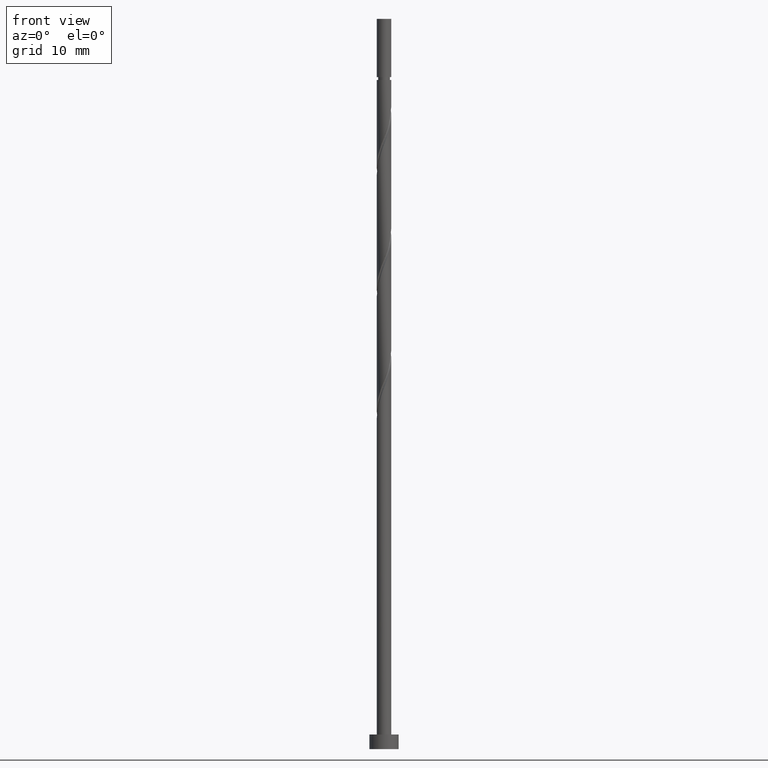
[diagram: clean part render]
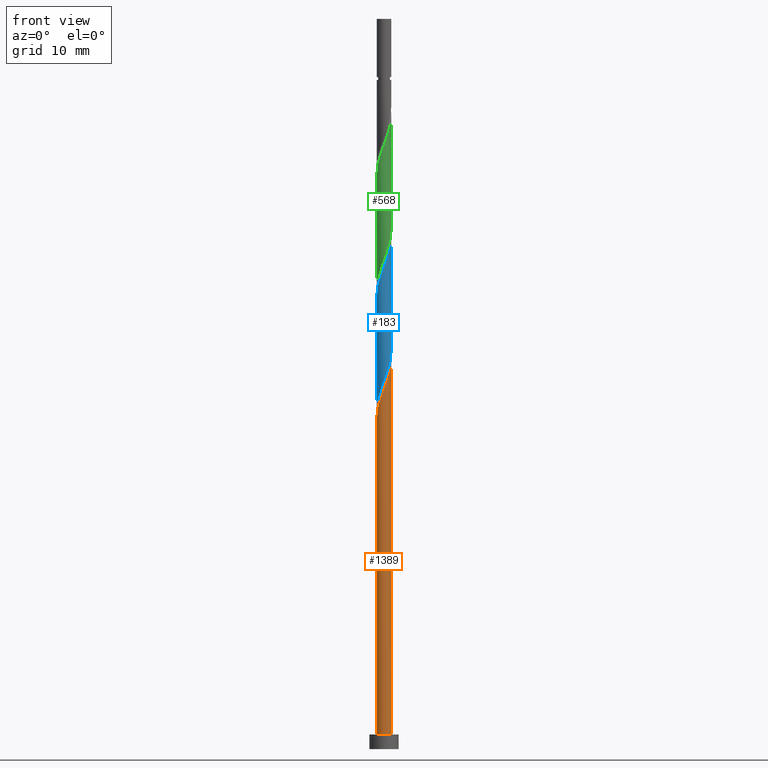
[diagram: same view with three faces highlighted in distinct colors, each labeled with its STEP entity id]
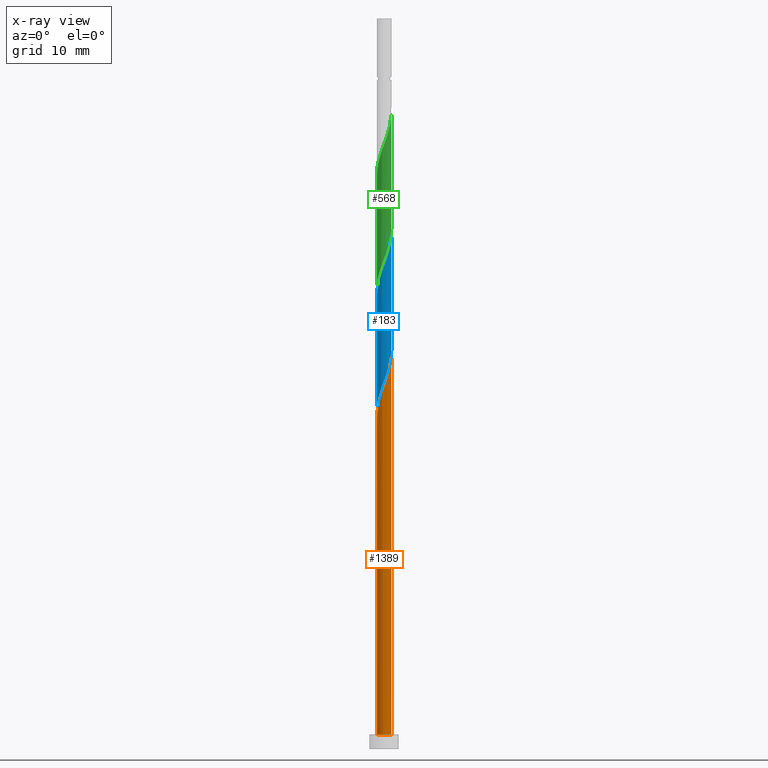
[diagram: x-ray of the same camera — body ghosted, the three highlighted faces saturated]
A machine part, front view with three faces highlighted in distinct colors.
The next image is the same camera in x-ray (body ghosted, the three faces saturated) — at least one of them is partly hidden behind the body in this view.
Their STEP definitions:

[orange] entity #1389 — the highlighted cylindrical surface (edge-blend (fillet) strip) has radius 1 mm, axis along (-0, -0, -1).
#29 = CARTESIAN_POINT ( 'NONE',  ( -0.9951180796480316726, -0.2020673444260115692, 45.79255415134097973 ) ) ;
#45 = LINE ( 'NONE', #1069, #339 ) ;
#53 = AXIS2_PLACEMENT_3D ( 'NONE', #1346, #643, #1102 ) ;
#76 = DIRECTION ( 'NONE',  ( 0.000000000000000000, 0.000000000000000000, 1.000000000000000000 ) ) ;
#79 = CARTESIAN_POINT ( 'NONE',  ( 0.6725544933722016339, -0.7607638645273760991, 51.34810970689651555 ) ) ;
#84 = CARTESIAN_POINT ( 'NONE',  ( 0.8921910604809056844, -0.4848570054394629736, 52.27403563282246779 ) ) ;
#141 = CARTESIAN_POINT ( 'NONE',  ( -1.000000000000001554, 5.471396497799840470E-16, 45.26169926301888324 ) ) ;
#180 = CARTESIAN_POINT ( 'NONE',  ( 0.000000000000000000, 0.000000000000000000, 2.000000000000000000 ) ) ;
#291 = CARTESIAN_POINT ( 'NONE',  ( -0.1481832699744008441, -0.9889599175394809816, 49.03329489208170600 ) ) ;
#299 = CARTESIAN_POINT ( 'NONE',  ( 0.02619704632702806249, -1.015088626125574489, 49.49625785504468212 ) ) ;
#305 = CARTESIAN_POINT ( 'NONE',  ( 1.000000000000001776, -0.1630543718204568171, 53.16511308398659708 ) ) ;
#322 = ORIENTED_EDGE ( 'NONE', *, *, #1287, .F. ) ;
#339 = VECTOR ( 'NONE', #1438, 1000.000000000000000 ) ;
#362 = CARTESIAN_POINT ( 'NONE',  ( 1.000000000000001554, -5.620786163268778548E-16, 53.59503259635221895 ) ) ;
#367 = CARTESIAN_POINT ( 'NONE',  ( -0.8659940141538775560, -0.5302316206861118486, 46.71848007726690355 ) ) ;
#401 = VERTEX_POINT ( 'NONE', #608 ) ;
#402 = CARTESIAN_POINT ( 'NONE',  ( 0.5221762109439108679, -0.8528376192009020640, 50.88514674393356785 ) ) ;
#424 = VERTEX_POINT ( 'NONE', #555 ) ;
#471 = CARTESIAN_POINT ( 'NONE',  ( -1.000000000000001554, 5.471396497799840470E-16, 45.26169926301888324 ) ) ;
#525 = VERTEX_POINT ( 'NONE', #362 ) ;
#540 = CARTESIAN_POINT ( 'NONE',  ( 0.9482036394194132134, -0.3176631206038599275, 52.73699859578541549 ) ) ;
#545 = CARTESIAN_POINT ( 'NONE',  ( 1.000000000000001554, -5.620786163268778548E-16, 53.59503259635221895 ) ) ;
#555 = CARTESIAN_POINT ( 'NONE',  ( -1.000000000000000000, 0.000000000000000000, 2.000000000000000000 ) ) ;
#593 = EDGE_CURVE ( 'NONE', #525, #401, #1082, .T. ) ;
#594 = CARTESIAN_POINT ( 'NONE',  ( -0.9996671490029760410, -0.02579905432887748956, 45.32959118837801071 ) ) ;
#603 = CARTESIAN_POINT ( 'NONE',  ( -0.6324182898423007515, -0.7944421381061724796, 47.64440600319283448 ) ) ;
#608 = CARTESIAN_POINT ( 'NONE',  ( 1.000000000000000000, 1.224646799147353207E-16, 2.000000000000000000 ) ) ;
#614 = CARTESIAN_POINT ( 'NONE',  ( -1.000000000000001332, -0.01290167433202621221, 45.29571663695122652 ) ) ;
#643 = DIRECTION ( 'NONE',  ( -0.000000000000000000, -0.000000000000000000, -1.000000000000000000 ) ) ;
#652 = CARTESIAN_POINT ( 'NONE',  ( 0.3717979285156199909, -0.9449113738744290281, 50.42218378097059883 ) ) ;
#706 = ORIENTED_EDGE ( 'NONE', *, *, #593, .F. ) ;
#774 = VECTOR ( 'NONE', #1315, 1000.000000000000000 ) ;
#786 = ORIENTED_EDGE ( 'NONE', *, *, #1404, .T. ) ;
#828 = CARTESIAN_POINT ( 'NONE',  ( -0.7492061519980890427, -0.6623368793961417200, 47.18144304022986546 ) ) ;
#850 = EDGE_CURVE ( 'NONE', #1257, #424, #45, .T. ) ;
#888 = AXIS2_PLACEMENT_3D ( 'NONE', #180, #76, #986 ) ;
#936 = CARTESIAN_POINT ( 'NONE',  ( -0.9305560469009542812, -0.3661494825560615007, 46.25551711430392743 ) ) ;
#986 = DIRECTION ( 'NONE',  ( 1.000000000000000000, 0.000000000000000000, 0.000000000000000000 ) ) ;
#1048 = CIRCLE ( 'NONE', #888, 1.000000000000000000 ) ;
#1069 = CARTESIAN_POINT ( 'NONE',  ( -1.000000000000000000, 0.000000000000000000, 100.0000000000000000 ) ) ;
#1082 = LINE ( 'NONE', #1324, #774 ) ;
#1092 = CARTESIAN_POINT ( 'NONE',  ( -0.3225635862758299832, -0.9628312089533875850, 48.57033192911875830 ) ) ;
#1095 =( BOUNDED_CURVE ( )  B_SPLINE_CURVE ( 2, ( #141, #614, #594, #29, #936, #367, #828, #603, #1331, #1092, #291, #299, #1323, #652, #402, #79, #1227, #84, #540, #305, #545 ),
 .UNSPECIFIED., .F., .T. ) 
 B_SPLINE_CURVE_WITH_KNOTS ( ( 3, 2, 2, 2, 2, 2, 2, 2, 2, 2, 3 ),
 ( 0.05452480538552949285, 0.05555555555555558023, 0.06944444444444441977, 0.08333333333333337034, 0.09722222222222220989, 0.1111111111111111605, 0.1250000000000000000, 0.1388888888888888395, 0.1527777777777777901, 0.1666666666666666297, 0.1795248053855291182 ),
 .UNSPECIFIED. ) 
 CURVE ( )  GEOMETRIC_REPRESENTATION_ITEM ( )  RATIONAL_B_SPLINE_CURVE ( ( 0.9071930855141231431, 0.9080659294509705326, 0.9090909090909101709, 0.8952797754656445228, 0.9090909090909101709, 0.8952797754656445228, 0.9090909090909101709, 0.8952797754656445228, 0.9090909090909101709, 0.8952797754656445228, 0.9090909090909101709, 0.8952797754656445228, 0.9090909090909101709, 0.8952797754656445228, 0.9090909090909101709, 0.8952797754656445228, 0.9090909090909101709, 0.8952797754656445228, 0.9090909090909101709, 0.8963047551055846052, 0.9071930855141224770 ) ) 
 REPRESENTATION_ITEM ( '' )  );
#1102 = DIRECTION ( 'NONE',  ( -1.000000000000000000, 0.000000000000000000, 0.000000000000000000 ) ) ;
#1107 = CYLINDRICAL_SURFACE ( 'NONE', #53, 1.000000000000000000 ) ;
#1109 = ORIENTED_EDGE ( 'NONE', *, *, #850, .T. ) ;
#1219 = FACE_OUTER_BOUND ( 'NONE', #1226, .T. ) ;
#1226 = EDGE_LOOP ( 'NONE', ( #706, #322, #1109, #786 ) ) ;
#1227 = CARTESIAN_POINT ( 'NONE',  ( 0.7823727769265538257, -0.6228104349834193698, 51.81107266985949167 ) ) ;
#1257 = VERTEX_POINT ( 'NONE', #471 ) ;
#1287 = EDGE_CURVE ( 'NONE', #1257, #525, #1095, .T. ) ;
#1315 = DIRECTION ( 'NONE',  ( -0.000000000000000000, -0.000000000000000000, -1.000000000000000000 ) ) ;
#1323 = CARTESIAN_POINT ( 'NONE',  ( 0.1989974874213241984, -0.9800000000000013145, 49.95922081800762271 ) ) ;
#1324 = CARTESIAN_POINT ( 'NONE',  ( 1.000000000000000000, 1.224646799147353207E-16, 100.0000000000000000 ) ) ;
#1331 = CARTESIAN_POINT ( 'NONE',  ( -0.4774909380590655061, -0.8786366735297796993, 48.10736896615578218 ) ) ;
#1346 = CARTESIAN_POINT ( 'NONE',  ( 0.000000000000000000, 0.000000000000000000, 100.0000000000000000 ) ) ;
#1389 = ADVANCED_FACE ( 'NONE', ( #1219 ), #1107, .T. ) ;
#1404 = EDGE_CURVE ( 'NONE', #424, #401, #1048, .T. ) ;
#1438 = DIRECTION ( 'NONE',  ( -0.000000000000000000, -0.000000000000000000, -1.000000000000000000 ) ) ;

[blue] entity #183 — the highlighted cylindrical surface (edge-blend (fillet) strip) has radius 1 mm, axis along (-0, -0, -1).
#1 = CARTESIAN_POINT ( 'NONE',  ( 0.6725544933722016339, -0.7607638645273760991, 68.01477637356319406 ) ) ;
#8 = CARTESIAN_POINT ( 'NONE',  ( -0.8659940141538775560, -0.5302316206861118486, 63.38514674393356785 ) ) ;
#9 = CARTESIAN_POINT ( 'NONE',  ( 0.9482036394194132134, -0.3176631206038599275, 69.40366526245207979 ) ) ;
#15 = CARTESIAN_POINT ( 'NONE',  ( -0.9305560469009542812, -0.3661494825560615007, 62.92218378097061304 ) ) ;
#23 = DIRECTION ( 'NONE',  ( -0.000000000000000000, -0.000000000000000000, -1.000000000000000000 ) ) ;
#66 = ORIENTED_EDGE ( 'NONE', *, *, #993, .F. ) ;
#99 = CARTESIAN_POINT ( 'NONE',  ( -1.000000000000001554, 5.471396497799840470E-16, 61.92836592968554754 ) ) ;
#120 = VECTOR ( 'NONE', #576, 1000.000000000000000 ) ;
#123 = CARTESIAN_POINT ( 'NONE',  ( 1.000000000000001554, -5.620786163268778548E-16, 70.26169926301886903 ) ) ;
#183 = ADVANCED_FACE ( 'NONE', ( #826 ), #506, .T. ) ;
#184 = ORIENTED_EDGE ( 'NONE', *, *, #788, .F. ) ;
#223 = CARTESIAN_POINT ( 'NONE',  ( -0.9996671490029760410, -0.02579905432887748956, 61.99625785504467501 ) ) ;
#230 = CARTESIAN_POINT ( 'NONE',  ( 0.5221762109439108679, -0.8528376192009020640, 67.55181341060023215 ) ) ;
#267 = CARTESIAN_POINT ( 'NONE',  ( 0.000000000000000000, 0.000000000000000000, 100.0000000000000000 ) ) ;
#332 = CARTESIAN_POINT ( 'NONE',  ( -0.3717979285156206015, -0.9449113738744283619, 49.49625785504466791 ) ) ;
#340 = LINE ( 'NONE', #561, #120 ) ;
#348 = CARTESIAN_POINT ( 'NONE',  ( 0.1989974874213241984, -0.9800000000000013145, 66.62588748467429411 ) ) ;
#355 = CARTESIAN_POINT ( 'NONE',  ( -0.7492061519980890427, -0.6623368793961417200, 63.84810970689654397 ) ) ;
#370 = CARTESIAN_POINT ( 'NONE',  ( 0.7492061519980887097, -0.6623368793961423862, 52.73699859578542259 ) ) ;
#379 = CARTESIAN_POINT ( 'NONE',  ( 0.4774909380590651731, -0.8786366735297796993, 51.81107266985948456 ) ) ;
#441 = CARTESIAN_POINT ( 'NONE',  ( -1.000000000000001332, -0.01290167433202499790, 61.96238330361792634 ) ) ;
#448 = CARTESIAN_POINT ( 'NONE',  ( -0.5221762109439110899, -0.8528376192009021750, 49.03329489208172731 ) ) ;
#458 = CARTESIAN_POINT ( 'NONE',  ( 0.02619704632702806249, -1.015088626125574489, 66.16292452171134642 ) ) ;
#464 = CARTESIAN_POINT ( 'NONE',  ( -0.4774909380590655061, -0.8786366735297796993, 64.77403563282246068 ) ) ;
#482 = CARTESIAN_POINT ( 'NONE',  ( 1.000000000000001332, -0.01290167433202129774, 54.62272499906404022 ) ) ;
#506 = CYLINDRICAL_SURFACE ( 'NONE', #703, 1.000000000000000000 ) ;
#529 = VECTOR ( 'NONE', #23, 1000.000000000000000 ) ;
#561 = CARTESIAN_POINT ( 'NONE',  ( 1.000000000000000000, 1.224646799147353207E-16, 100.0000000000000000 ) ) ;
#571 =( BOUNDED_CURVE ( )  B_SPLINE_CURVE ( 2, ( #598, #482, #854, #1421, #938, #1412, #370, #831, #379, #745, #1385, #1011, #1265, #332, #448, #1156, #1251, #579, #697, #1482, #903 ),
 .UNSPECIFIED., .F., .T. ) 
 B_SPLINE_CURVE_WITH_KNOTS ( ( 3, 2, 2, 2, 2, 2, 2, 2, 2, 2, 3 ),
 ( 0.8045248053855290626, 0.8055555555555555802, 0.8194444444444444198, 0.8333333333333333703, 0.8472222222222222099, 0.8611111111111111605, 0.8750000000000000000, 0.8888888888888888395, 0.9027777777777777901, 0.9166666666666666297, 0.9295248053855289516 ),
 .UNSPECIFIED. ) 
 CURVE ( )  GEOMETRIC_REPRESENTATION_ITEM ( )  RATIONAL_B_SPLINE_CURVE ( ( 0.9071930855141221439, 0.9080659294509698665, 0.9090909090909099488, 0.8952797754656446338, 0.9090909090909099488, 0.8952797754656446338, 0.9090909090909099488, 0.8952797754656446338, 0.9090909090909099488, 0.8952797754656446338, 0.9090909090909099488, 0.8952797754656446338, 0.9090909090909099488, 0.8952797754656446338, 0.9090909090909099488, 0.8952797754656446338, 0.9090909090909099488, 0.8952797754656446338, 0.9090909090909099488, 0.8963047551055848272, 0.9071930855141220329 ) ) 
 REPRESENTATION_ITEM ( '' )  );
#576 = DIRECTION ( 'NONE',  ( -0.000000000000000000, -0.000000000000000000, -1.000000000000000000 ) ) ;
#579 = CARTESIAN_POINT ( 'NONE',  ( -0.8921910604809055734, -0.4848570054394628071, 47.64440600319283448 ) ) ;
#598 = CARTESIAN_POINT ( 'NONE',  ( 1.000000000000001332, 5.975586618757505867E-17, 54.65674237299639060 ) ) ;
#633 = VERTEX_POINT ( 'NONE', #753 ) ;
#645 = EDGE_LOOP ( 'NONE', ( #184, #66, #651, #1344 ) ) ;
#651 = ORIENTED_EDGE ( 'NONE', *, *, #1151, .T. ) ;
#674 = CARTESIAN_POINT ( 'NONE',  ( -0.3225635862758299832, -0.9628312089533875850, 65.23699859578542259 ) ) ;
#675 = CARTESIAN_POINT ( 'NONE',  ( 0.7823727769265538257, -0.6228104349834193698, 68.47773933652615597 ) ) ;
#684 = CARTESIAN_POINT ( 'NONE',  ( -1.000000000000001554, 5.471396497799840470E-16, 61.92836592968554754 ) ) ;
#697 = CARTESIAN_POINT ( 'NONE',  ( -0.9482036394194132134, -0.3176631206038592614, 47.18144304022985835 ) ) ;
#703 = AXIS2_PLACEMENT_3D ( 'NONE', #267, #1056, #942 ) ;
#728 =( BOUNDED_CURVE ( )  B_SPLINE_CURVE ( 2, ( #684, #441, #223, #1379, #15, #8, #355, #1146, #464, #674, #921, #458, #348, #915, #230, #1, #675, #1259, #9, #1012, #123 ),
 .UNSPECIFIED., .F., .T. ) 
 B_SPLINE_CURVE_WITH_KNOTS ( ( 3, 2, 2, 2, 2, 2, 2, 2, 2, 2, 3 ),
 ( 0.3045248053855293957, 0.3055555555555555802, 0.3194444444444444198, 0.3333333333333333703, 0.3472222222222222099, 0.3611111111111111605, 0.3750000000000000000, 0.3888888888888888395, 0.4027777777777777901, 0.4166666666666666297, 0.4295248053855286741 ),
 .UNSPECIFIED. ) 
 CURVE ( )  GEOMETRIC_REPRESENTATION_ITEM ( )  RATIONAL_B_SPLINE_CURVE ( ( 0.9071930855141229211, 0.9080659294509704216, 0.9090909090909101709, 0.8952797754656445228, 0.9090909090909101709, 0.8952797754656445228, 0.9090909090909101709, 0.8952797754656445228, 0.9090909090909101709, 0.8952797754656445228, 0.9090909090909101709, 0.8952797754656445228, 0.9090909090909101709, 0.8952797754656445228, 0.9090909090909101709, 0.8952797754656445228, 0.9090909090909101709, 0.8952797754656445228, 0.9090909090909101709, 0.8963047551055850493, 0.9071930855141216998 ) ) 
 REPRESENTATION_ITEM ( '' )  );
#745 = CARTESIAN_POINT ( 'NONE',  ( 0.3225635862758296502, -0.9628312089533871410, 51.34810970689652265 ) ) ;
#753 = CARTESIAN_POINT ( 'NONE',  ( 1.000000000000001332, 5.975586618757505867E-17, 54.65674237299639060 ) ) ;
#788 = EDGE_CURVE ( 'NONE', #1401, #633, #340, .T. ) ;
#826 = FACE_OUTER_BOUND ( 'NONE', #645, .T. ) ;
#831 = CARTESIAN_POINT ( 'NONE',  ( 0.6324182898423003074, -0.7944421381061724796, 52.27403563282246068 ) ) ;
#854 = CARTESIAN_POINT ( 'NONE',  ( 0.9996671490029760410, -0.02579905432887794406, 54.58885044763726313 ) ) ;
#903 = CARTESIAN_POINT ( 'NONE',  ( -1.000000000000001332, -4.313626590415574556E-16, 46.32340903966308332 ) ) ;
#915 = CARTESIAN_POINT ( 'NONE',  ( 0.3717979285156199909, -0.9449113738744290281, 67.08885044763728445 ) ) ;
#921 = CARTESIAN_POINT ( 'NONE',  ( -0.1481832699744008441, -0.9889599175394809816, 65.69996155874838450 ) ) ;
#938 = CARTESIAN_POINT ( 'NONE',  ( 0.9305560469009542812, -0.3661494825560615007, 53.66292452171133220 ) ) ;
#942 = DIRECTION ( 'NONE',  ( -1.000000000000000000, 0.000000000000000000, 0.000000000000000000 ) ) ;
#956 = CARTESIAN_POINT ( 'NONE',  ( -1.000000000000000000, 0.000000000000000000, 100.0000000000000000 ) ) ;
#979 = EDGE_CURVE ( 'NONE', #633, #1279, #571, .T. ) ;
#993 = EDGE_CURVE ( 'NONE', #1467, #1401, #728, .T. ) ;
#1011 = CARTESIAN_POINT ( 'NONE',  ( -0.02619704632702880842, -1.015088626125574045, 50.42218378097059883 ) ) ;
#1012 = CARTESIAN_POINT ( 'NONE',  ( 0.9999999999999997780, -0.1630543718204622849, 69.83177975065325427 ) ) ;
#1056 = DIRECTION ( 'NONE',  ( -0.000000000000000000, -0.000000000000000000, -1.000000000000000000 ) ) ;
#1081 = LINE ( 'NONE', #956, #529 ) ;
#1146 = CARTESIAN_POINT ( 'NONE',  ( -0.6324182898423007515, -0.7944421381061724796, 64.31107266985948456 ) ) ;
#1151 = EDGE_CURVE ( 'NONE', #1467, #1279, #1081, .T. ) ;
#1156 = CARTESIAN_POINT ( 'NONE',  ( -0.6725544933722015228, -0.7607638645273760991, 48.57033192911875119 ) ) ;
#1179 = CARTESIAN_POINT ( 'NONE',  ( -1.000000000000001332, -4.313626590415574556E-16, 46.32340903966308332 ) ) ;
#1211 = CARTESIAN_POINT ( 'NONE',  ( 1.000000000000001554, -5.620786163268778548E-16, 70.26169926301888324 ) ) ;
#1251 = CARTESIAN_POINT ( 'NONE',  ( -0.7823727769265538257, -0.6228104349834189257, 48.10736896615577507 ) ) ;
#1259 = CARTESIAN_POINT ( 'NONE',  ( 0.8921910604809056844, -0.4848570054394629736, 68.94070229948913209 ) ) ;
#1265 = CARTESIAN_POINT ( 'NONE',  ( -0.1989974874213244482, -0.9800000000000014255, 49.95922081800763692 ) ) ;
#1279 = VERTEX_POINT ( 'NONE', #1179 ) ;
#1344 = ORIENTED_EDGE ( 'NONE', *, *, #979, .F. ) ;
#1379 = CARTESIAN_POINT ( 'NONE',  ( -0.9951180796480316726, -0.2020673444260115692, 62.45922081800764403 ) ) ;
#1385 = CARTESIAN_POINT ( 'NONE',  ( 0.1481832699744006498, -0.9889599175394806485, 50.88514674393356074 ) ) ;
#1401 = VERTEX_POINT ( 'NONE', #1211 ) ;
#1412 = CARTESIAN_POINT ( 'NONE',  ( 0.8659940141538773339, -0.5302316206861120707, 53.19996155874837740 ) ) ;
#1421 = CARTESIAN_POINT ( 'NONE',  ( 0.9951180796480316726, -0.2020673444260117357, 54.12588748467431543 ) ) ;
#1467 = VERTEX_POINT ( 'NONE', #99 ) ;
#1482 = CARTESIAN_POINT ( 'NONE',  ( -1.000000000000001110, -0.1630543718204581216, 46.75332855202869098 ) ) ;

[green] entity #568 — the highlighted cylindrical surface (edge-blend (fillet) strip) has radius 1 mm, axis along (-0, -0, -1).
#13 = LINE ( 'NONE', #1016, #625 ) ;
#51 = VECTOR ( 'NONE', #970, 1000.000000000000000 ) ;
#82 = CARTESIAN_POINT ( 'NONE',  ( 0.4774909380590651731, -0.8786366735297796993, 68.47773933652615597 ) ) ;
#151 = CARTESIAN_POINT ( 'NONE',  ( 0.9305560469009542812, -0.3661494825560615007, 70.32959118837803203 ) ) ;
#164 = CARTESIAN_POINT ( 'NONE',  ( 0.8921910604809056844, -0.4848570054394629736, 85.60736896615581770 ) ) ;
#204 = CARTESIAN_POINT ( 'NONE',  ( -1.000000000000001554, 9.037047706920019768E-13, 62.99007570632733888 ) ) ;
#221 = CARTESIAN_POINT ( 'NONE',  ( 1.000000000000001332, -6.666513821551340165E-16, 86.92836592968551201 ) ) ;
#261 = CARTESIAN_POINT ( 'NONE',  ( 0.9996671490029760410, -0.02579905432887794406, 71.25551711430392743 ) ) ;
#266 =( BOUNDED_CURVE ( )  B_SPLINE_CURVE ( 2, ( #666, #1283, #261, #1190, #151, #604, #1061, #1073, #82, #538, #995, #884, #1115, #1272, #794, #1162, #492, #422, #543, #1183, #204 ),
 .UNSPECIFIED., .F., .T. ) 
 B_SPLINE_CURVE_WITH_KNOTS ( ( 3, 2, 2, 2, 2, 2, 2, 2, 2, 2, 3 ),
 ( 0.5545248053855288406, 0.5555555555555555802, 0.5694444444444444198, 0.5833333333333333703, 0.5972222222222222099, 0.6111111111111111605, 0.6250000000000000000, 0.6388888888888888395, 0.6527777777777777901, 0.6666666666666666297, 0.6795248053855653669 ),
 .UNSPECIFIED. ) 
 CURVE ( )  GEOMETRIC_REPRESENTATION_ITEM ( )  RATIONAL_B_SPLINE_CURVE ( ( 0.9071930855141219219, 0.9080659294509696444, 0.9090909090909099488, 0.8952797754656446338, 0.9090909090909099488, 0.8952797754656446338, 0.9090909090909099488, 0.8952797754656446338, 0.9090909090909099488, 0.8952797754656446338, 0.9090909090909099488, 0.8952797754656446338, 0.9090909090909099488, 0.8952797754656446338, 0.9090909090909099488, 0.8952797754656446338, 0.9090909090909099488, 0.8952797754656446338, 0.9090909090909099488, 0.8963047551055486339, 0.9071930855141836503 ) ) 
 REPRESENTATION_ITEM ( '' )  );
#279 = ORIENTED_EDGE ( 'NONE', *, *, #1086, .F. ) ;
#295 = EDGE_CURVE ( 'NONE', #1116, #1448, #988, .T. ) ;
#302 = CARTESIAN_POINT ( 'NONE',  ( -0.1481832699744008441, -0.9889599175394809816, 82.36662822541505591 ) ) ;
#334 = EDGE_CURVE ( 'NONE', #1116, #1222, #734, .T. ) ;
#409 = CARTESIAN_POINT ( 'NONE',  ( 0.5221762109439108679, -0.8528376192009020640, 84.21848007726691776 ) ) ;
#422 = CARTESIAN_POINT ( 'NONE',  ( -0.8921910604809055734, -0.4848570054394628071, 64.31107266985948456 ) ) ;
#474 = CYLINDRICAL_SURFACE ( 'NONE', #1422, 1.000000000000000000 ) ;
#492 = CARTESIAN_POINT ( 'NONE',  ( -0.7823727769265538257, -0.6228104349834189257, 64.77403563282246068 ) ) ;
#504 = CARTESIAN_POINT ( 'NONE',  ( 0.9482036394194132134, -0.3176631206038599275, 86.07033192911876540 ) ) ;
#523 = CARTESIAN_POINT ( 'NONE',  ( -0.7492061519980890427, -0.6623368793961417200, 80.51477637356317985 ) ) ;
#538 = CARTESIAN_POINT ( 'NONE',  ( 0.3225635862758296502, -0.9628312089533871410, 68.01477637356319406 ) ) ;
#543 = CARTESIAN_POINT ( 'NONE',  ( -0.9482036394194132134, -0.3176631206038592614, 63.84810970689652976 ) ) ;
#568 = ADVANCED_FACE ( 'NONE', ( #596 ), #474, .T. ) ;
#596 = FACE_OUTER_BOUND ( 'NONE', #1186, .T. ) ;
#604 = CARTESIAN_POINT ( 'NONE',  ( 0.8659940141538773339, -0.5302316206861120707, 69.86662822541504170 ) ) ;
#609 = CARTESIAN_POINT ( 'NONE',  ( -0.9996671490029760410, -0.02579905432887748956, 78.66292452171131799 ) ) ;
#625 = VECTOR ( 'NONE', #1256, 1000.000000000000000 ) ;
#638 = CARTESIAN_POINT ( 'NONE',  ( -1.000000000000001554, -0.01290167433201933923, 78.62904997028456933 ) ) ;
#666 = CARTESIAN_POINT ( 'NONE',  ( 1.000000000000001332, 5.975586618757505867E-17, 71.32340903966306200 ) ) ;
#670 = ORIENTED_EDGE ( 'NONE', *, *, #295, .F. ) ;
#730 = CARTESIAN_POINT ( 'NONE',  ( 1.000000000000001332, 5.975586618757505867E-17, 71.32340903966306200 ) ) ;
#734 = LINE ( 'NONE', #855, #51 ) ;
#738 = VERTEX_POINT ( 'NONE', #730 ) ;
#740 = CARTESIAN_POINT ( 'NONE',  ( -1.000000000000001332, 6.535797864266019963E-16, 78.59503259635219763 ) ) ;
#766 = CARTESIAN_POINT ( 'NONE',  ( 0.1989974874213241984, -0.9800000000000013145, 83.29255415134096552 ) ) ;
#794 = CARTESIAN_POINT ( 'NONE',  ( -0.5221762109439110899, -0.8528376192009021750, 65.69996155874839872 ) ) ;
#815 = EDGE_CURVE ( 'NONE', #1448, #738, #13, .T. ) ;
#855 = CARTESIAN_POINT ( 'NONE',  ( -1.000000000000000000, 0.000000000000000000, 100.0000000000000000 ) ) ;
#872 = CARTESIAN_POINT ( 'NONE',  ( -0.3225635862758299832, -0.9628312089533875850, 81.90366526245210821 ) ) ;
#884 = CARTESIAN_POINT ( 'NONE',  ( -0.02619704632702880842, -1.015088626125574045, 67.08885044763727024 ) ) ;
#931 = CARTESIAN_POINT ( 'NONE',  ( 0.000000000000000000, 0.000000000000000000, 100.0000000000000000 ) ) ;
#962 = CARTESIAN_POINT ( 'NONE',  ( -1.000000000000001332, 6.535797864266019963E-16, 78.59503259635218342 ) ) ;
#970 = DIRECTION ( 'NONE',  ( -0.000000000000000000, -0.000000000000000000, -1.000000000000000000 ) ) ;
#971 = CARTESIAN_POINT ( 'NONE',  ( -0.9305560469009542812, -0.3661494825560615007, 79.58885044763727024 ) ) ;
#988 =( BOUNDED_CURVE ( )  B_SPLINE_CURVE ( 2, ( #962, #638, #609, #1066, #971, #1087, #523, #1327, #1096, #872, #302, #1335, #766, #1220, #409, #1408, #1194, #164, #504, #1318, #1423 ),
 .UNSPECIFIED., .F., .T. ) 
 B_SPLINE_CURVE_WITH_KNOTS ( ( 3, 2, 2, 2, 2, 2, 2, 2, 2, 2, 3 ),
 ( 0.5545248053855289516, 0.5555555555555555802, 0.5694444444444444198, 0.5833333333333332593, 0.5972222222222222099, 0.6111111111111111605, 0.6250000000000000000, 0.6388888888888888395, 0.6527777777777777901, 0.6666666666666667407, 0.6795248053855292847 ),
 .UNSPECIFIED. ) 
 CURVE ( )  GEOMETRIC_REPRESENTATION_ITEM ( )  RATIONAL_B_SPLINE_CURVE ( ( 0.9071930855141221439, 0.9080659294509698665, 0.9090909090909101709, 0.8952797754656445228, 0.9090909090909101709, 0.8952797754656445228, 0.9090909090909101709, 0.8952797754656445228, 0.9090909090909101709, 0.8952797754656445228, 0.9090909090909101709, 0.8952797754656445228, 0.9090909090909101709, 0.8952797754656445228, 0.9090909090909101709, 0.8952797754656445228, 0.9090909090909101709, 0.8952797754656445228, 0.9090909090909101709, 0.8963047551055843831, 0.9071930855141228101 ) ) 
 REPRESENTATION_ITEM ( '' )  );
#995 = CARTESIAN_POINT ( 'NONE',  ( 0.1481832699744006498, -0.9889599175394806485, 67.55181341060023215 ) ) ;
#1016 = CARTESIAN_POINT ( 'NONE',  ( 1.000000000000000000, 1.224646799147353207E-16, 100.0000000000000000 ) ) ;
#1053 = DIRECTION ( 'NONE',  ( -1.000000000000000000, 0.000000000000000000, 0.000000000000000000 ) ) ;
#1061 = CARTESIAN_POINT ( 'NONE',  ( 0.7492061519980887097, -0.6623368793961423862, 69.40366526245209400 ) ) ;
#1066 = CARTESIAN_POINT ( 'NONE',  ( -0.9951180796480316726, -0.2020673444260115692, 79.12588748467432254 ) ) ;
#1073 = CARTESIAN_POINT ( 'NONE',  ( 0.6324182898423003074, -0.7944421381061724796, 68.94070229948911788 ) ) ;
#1086 = EDGE_CURVE ( 'NONE', #738, #1222, #266, .T. ) ;
#1087 = CARTESIAN_POINT ( 'NONE',  ( -0.8659940141538775560, -0.5302316206861118486, 80.05181341060024636 ) ) ;
#1096 = CARTESIAN_POINT ( 'NONE',  ( -0.4774909380590655061, -0.8786366735297796993, 81.44070229948910367 ) ) ;
#1115 = CARTESIAN_POINT ( 'NONE',  ( -0.1989974874213244482, -0.9800000000000014255, 66.62588748467429411 ) ) ;
#1116 = VERTEX_POINT ( 'NONE', #740 ) ;
#1162 = CARTESIAN_POINT ( 'NONE',  ( -0.6725544933722015228, -0.7607638645273760991, 65.23699859578539417 ) ) ;
#1166 = CARTESIAN_POINT ( 'NONE',  ( -1.000000000000001554, 9.037047706920019768E-13, 62.99007570632733888 ) ) ;
#1183 = CARTESIAN_POINT ( 'NONE',  ( -1.000000000000149880, -0.1630543718200140046, 63.41999521869409762 ) ) ;
#1186 = EDGE_LOOP ( 'NONE', ( #1207, #670, #1387, #279 ) ) ;
#1190 = CARTESIAN_POINT ( 'NONE',  ( 0.9951180796480316726, -0.2020673444260117357, 70.79255415134096552 ) ) ;
#1194 = CARTESIAN_POINT ( 'NONE',  ( 0.7823727769265538257, -0.6228104349834193698, 85.14440600319284158 ) ) ;
#1207 = ORIENTED_EDGE ( 'NONE', *, *, #815, .F. ) ;
#1220 = CARTESIAN_POINT ( 'NONE',  ( 0.3717979285156199909, -0.9449113738744290281, 83.75551711430395585 ) ) ;
#1222 = VERTEX_POINT ( 'NONE', #1166 ) ;
#1256 = DIRECTION ( 'NONE',  ( -0.000000000000000000, -0.000000000000000000, -1.000000000000000000 ) ) ;
#1272 = CARTESIAN_POINT ( 'NONE',  ( -0.3717979285156206015, -0.9449113738744283619, 66.16292452171134642 ) ) ;
#1283 = CARTESIAN_POINT ( 'NONE',  ( 1.000000000000001332, -0.01290167433201851524, 71.28939166573071873 ) ) ;
#1318 = CARTESIAN_POINT ( 'NONE',  ( 1.000000000000002442, -0.1630543718204549297, 86.49844641731996830 ) ) ;
#1327 = CARTESIAN_POINT ( 'NONE',  ( -0.6324182898423007515, -0.7944421381061724796, 80.97773933652618439 ) ) ;
#1335 = CARTESIAN_POINT ( 'NONE',  ( 0.02619704632702806249, -1.015088626125574489, 82.82959118837803203 ) ) ;
#1387 = ORIENTED_EDGE ( 'NONE', *, *, #334, .T. ) ;
#1405 = DIRECTION ( 'NONE',  ( -0.000000000000000000, -0.000000000000000000, -1.000000000000000000 ) ) ;
#1408 = CARTESIAN_POINT ( 'NONE',  ( 0.6725544933722016339, -0.7607638645273760991, 84.68144304022987967 ) ) ;
#1422 = AXIS2_PLACEMENT_3D ( 'NONE', #931, #1405, #1053 ) ;
#1423 = CARTESIAN_POINT ( 'NONE',  ( 1.000000000000001332, -6.666513821551340165E-16, 86.92836592968551201 ) ) ;
#1448 = VERTEX_POINT ( 'NONE', #221 ) ;